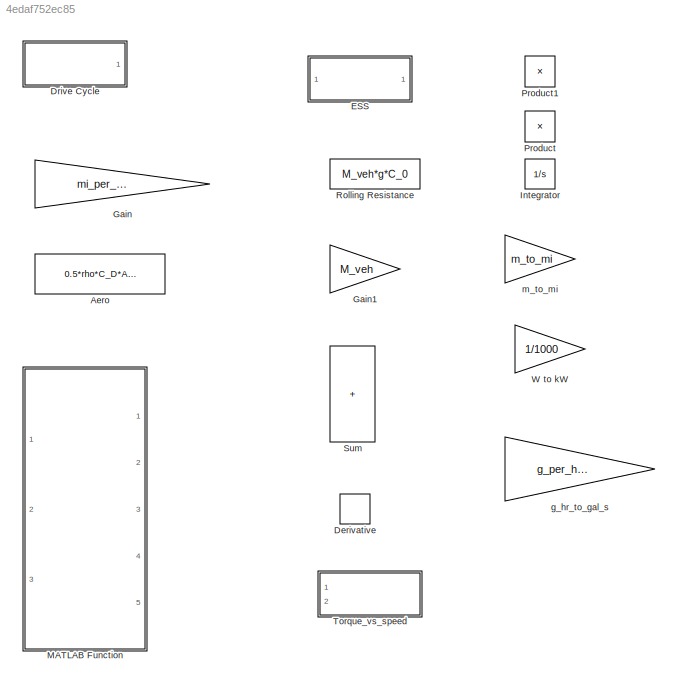
MODEL slx_4edaf752ec85
KIND model
CONFIG AbsTol = auto
CONFIG EnableMultiTasking = on
CONFIG FixedStep = 1
CONFIG MaxStep = auto
CONFIG MinStep = auto
CONFIG RelTol = 1e-3
CONFIG SampleTimeConstraint = Unconstrained
CONFIG Solver = ode2
CONFIG SolverName = ode2
CONFIG StartTime = 0.0
CONFIG StopTime = 4000
BLOCK [Fcn] Aero
  Expr = 0.5*rho*C_D*A_F*u(1)^2
BLOCK [Derivative] Derivative
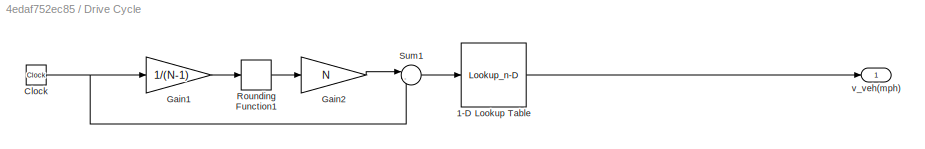
BLOCK [SubSystem] Drive Cycle
  Ports = [0, 1]
  RequestExecContextInheritance = off
BLOCK [Lookup_n-D] Drive Cycle/1-D Lookup Table
  BreakpointsForDimension1 = schedule(:,1)
  InternalRulePriority = Speed
  NumberOfTableDimensions = 1
  Ports = [1, 1]
  RndMeth = Simplest
  Table = schedule(:,2)
BLOCK [Clock] Drive Cycle/Clock
BLOCK [Gain] Drive Cycle/Gain1
  Gain = 1/(N-1)
BLOCK [Gain] Drive Cycle/Gain2
  Gain = N
BLOCK [Rounding] Drive Cycle/Rounding Function1
BLOCK [Sum] Drive Cycle/Sum1
  Inputs = |-+
  Ports = [2, 1]
BLOCK [Outport] Drive Cycle/v_veh(mph)
  VectorParamsAs1DForOutWhenUnconnected = off
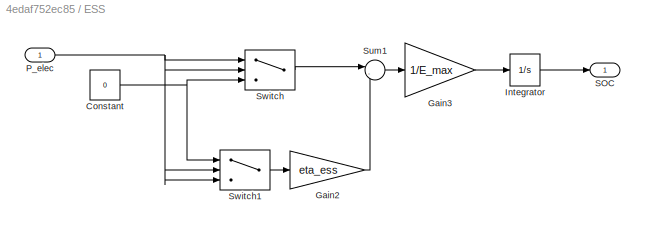
BLOCK [SubSystem] ESS
  Ports = [1, 1]
  RequestExecContextInheritance = off
BLOCK [Constant] ESS/Constant
  Value = 0
BLOCK [Gain] ESS/Gain2
  Gain = eta_ess
BLOCK [Gain] ESS/Gain3
  Gain = 1/E_max
  OutDataTypeStr = fixdt('double', 'DataTypeOverride', 'Off')
BLOCK [Integrator] ESS/Integrator
  InitialCondition = SOC_init
  LimitOutput = on
  LowerSaturationLimit = 0
  Ports = [1, 1]
  UpperSaturationLimit = 1
BLOCK [Inport] ESS/P_elec
BLOCK [Outport] ESS/SOC
  VectorParamsAs1DForOutWhenUnconnected = off
BLOCK [Sum] ESS/Sum1
  Inputs = |--
  Ports = [2, 1]
BLOCK [Switch] ESS/Switch
  InputSameDT = off
  OutDataTypeStr = double
  SaturateOnIntegerOverflow = off
BLOCK [Switch] ESS/Switch1
  InputSameDT = off
  OutDataTypeStr = double
  SaturateOnIntegerOverflow = off
BLOCK [Gain] Gain
  Gain = mi_per_hr_to_m_per_s
BLOCK [Gain] Gain1
  Gain = M_veh
BLOCK [Integrator] Integrator
  Ports = [1, 1]
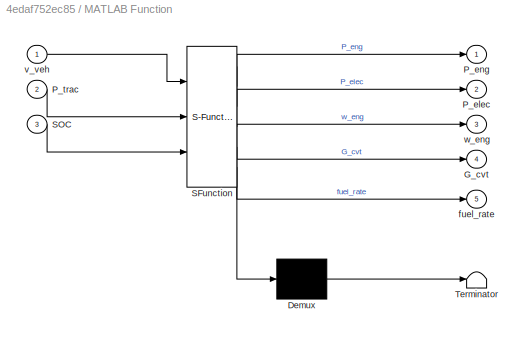
BLOCK [SubSystem] MATLAB Function
  ErrorFcn = Stateflow.Translate.translate
  PermitHierarchicalResolution = ExplicitOnly
  Ports = [3, 5]
  RequestExecContextInheritance = off
  SFBlockType = MATLAB Function
  TreatAsAtomicUnit = on
BLOCK [Demux] MATLAB Function/ Demux 
  Outputs = 1
  Ports = [1, 1]
BLOCK [S-Function] MATLAB Function/ SFunction 
  EnableBusSupport = off
  FunctionName = sf_sfun
  Parameters = eng_map,param
  PortCounts = [3 6]
  Ports = [3, 6]
  SFcnIsStateOwnerBlock = off
  SFunctionDeploymentMode = off
  Tag = Stateflow S-Function 2
BLOCK [Terminator] MATLAB Function/ Terminator 
BLOCK [Outport] MATLAB Function/G_cvt
  Port = 4
  VectorParamsAs1DForOutWhenUnconnected = off
BLOCK [Outport] MATLAB Function/P_elec
  Port = 2
  VectorParamsAs1DForOutWhenUnconnected = off
BLOCK [Outport] MATLAB Function/P_eng
  VectorParamsAs1DForOutWhenUnconnected = off
BLOCK [Inport] MATLAB Function/P_trac
  Port = 2
BLOCK [Inport] MATLAB Function/SOC
  Port = 3
BLOCK [Outport] MATLAB Function/fuel_rate
  Port = 5
  VectorParamsAs1DForOutWhenUnconnected = off
BLOCK [Inport] MATLAB Function/v_veh
BLOCK [Outport] MATLAB Function/w_eng
  Port = 3
  VectorParamsAs1DForOutWhenUnconnected = off
BLOCK [Product] Product
  Inputs = */
  Ports = [2, 1]
BLOCK [Product] Product1
  Ports = [2, 1]
BLOCK [Constant] Rolling Resistance
  Value = M_veh*g*C_0
BLOCK [Sum] Sum
  IconShape = rectangular
  Inputs = +++
  Ports = [3, 1]
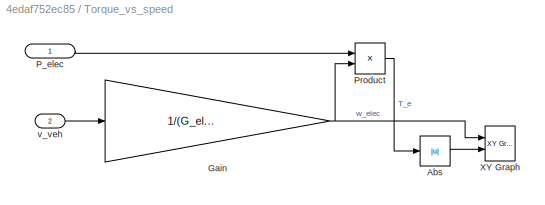
BLOCK [SubSystem] Torque_vs_speed
  Ports = [2]
  RequestExecContextInheritance = off
BLOCK [Abs] Torque_vs_speed/Abs
  SaturateOnIntegerOverflow = off
BLOCK [Gain] Torque_vs_speed/Gain
  Gain = 1/(G_elec * G_diff * r_wheel)
BLOCK [Inport] Torque_vs_speed/P_elec
BLOCK [Product] Torque_vs_speed/Product
  Inputs = */
  Ports = [2, 1]
BLOCK [Reference] Torque_vs_speed/XY Graph  REF=simulink/Sinks/XY Graph
  Ports = [2]
  SourceBlock = simulink/Sinks/XY Graph
  SourceProductBaseCode = SL
  SourceType = XY scope.
BLOCK [Inport] Torque_vs_speed/v_veh
  Port = 2
BLOCK [Gain] W to kW
  Gain = 1/1000
BLOCK [Gain] g_hr_to_gal_s
  Gain = g_per_hr_to_gal_per_s
BLOCK [Gain] m_to_mi
  Gain = m_to_mi
LINE Drive Cycle/1-D Lookup Table:1 -> Drive Cycle/v_veh(mph):1
NET Drive Cycle/Clock:1 -> Drive Cycle/Gain1:1, Drive Cycle/Sum1:2
LINE Drive Cycle/Gain1:1 -> Drive Cycle/Rounding Function1:1
LINE Drive Cycle/Gain2:1 -> Drive Cycle/Sum1:1
LINE Drive Cycle/Rounding Function1:1 -> Drive Cycle/Gain2:1
LINE Drive Cycle/Sum1:1 -> Drive Cycle/1-D Lookup Table:1
NET ESS/Constant:1 -> ESS/Switch1:1, ESS/Switch:3
LINE ESS/Gain2:1 -> ESS/Sum1:2
LINE ESS/Gain3:1 -> ESS/Integrator:1
LINE ESS/Integrator:1 -> ESS/SOC:1
NET ESS/P_elec:1 -> ESS/Switch1:2, ESS/Switch1:3, ESS/Switch:1, ESS/Switch:2
LINE ESS/Sum1:1 -> ESS/Gain3:1
LINE ESS/Switch1:1 -> ESS/Gain2:1
LINE ESS/Switch:1 -> ESS/Sum1:1
LINE Torque_vs_speed/Abs:1 -> Torque_vs_speed/XY Graph:2
NET Torque_vs_speed/Gain:1 -> Torque_vs_speed/Product:2, Torque_vs_speed/XY Graph:1
LINE Torque_vs_speed/P_elec:1 -> Torque_vs_speed/Product:1
LINE Torque_vs_speed/Product:1 -> Torque_vs_speed/Abs:1
LINE Torque_vs_speed/v_veh:1 -> Torque_vs_speed/Gain:1
note: NET lines group one-source signal fan-out (src -> all destinations, sorted); 1:1 wires keep LINE
CHART MATLAB Function states=1 transitions=1
  STATE_LABEL 'eML_blk_kernel()'
  STATE_LABEL 'SCRIPT:\nfunction [P_eng, P_elec, w_eng, G_cvt, fuel_rate] = fcn(v_veh, P_trac, SOC, param, eng_map)\n%#codegen\n%inputs:\n    % v_veh, m/s\n    % P_trac, W\n    % SOC\n    % param, structure of parameters\n    % eng_map\n\n% outputs:\n    %   P_gen, P_elec in W\n    %   w_eng, rpm\n    %   G_cvt (cvt ratio)\n    %   Fuel rate, g/hr\n\nv_veh_min = param.v_veh_min;    % minimum vehicle speed for engine to stay eng...<+2091ch>'
CHART  states=0 transitions=0
